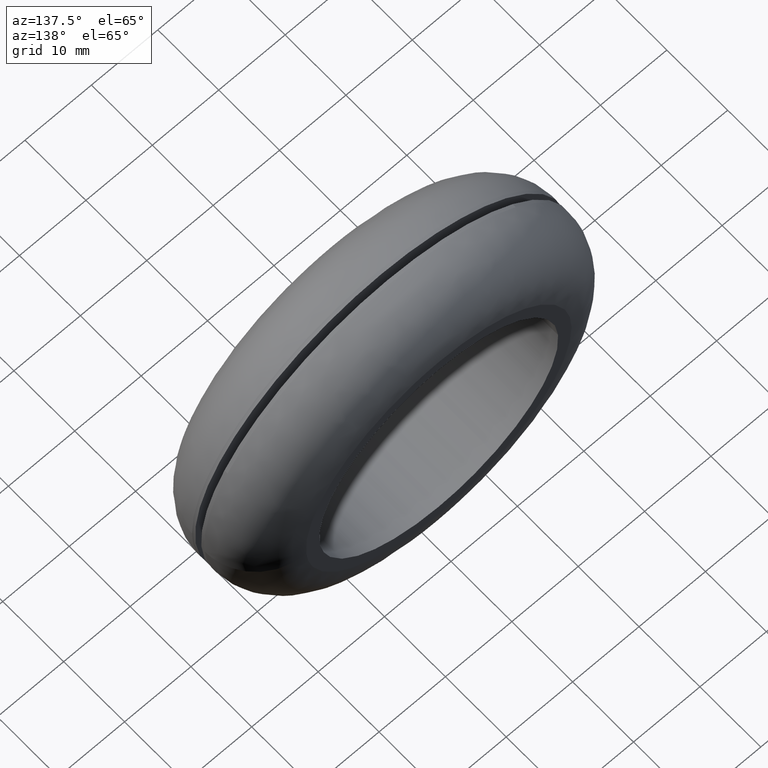
[diagram: clean part render]
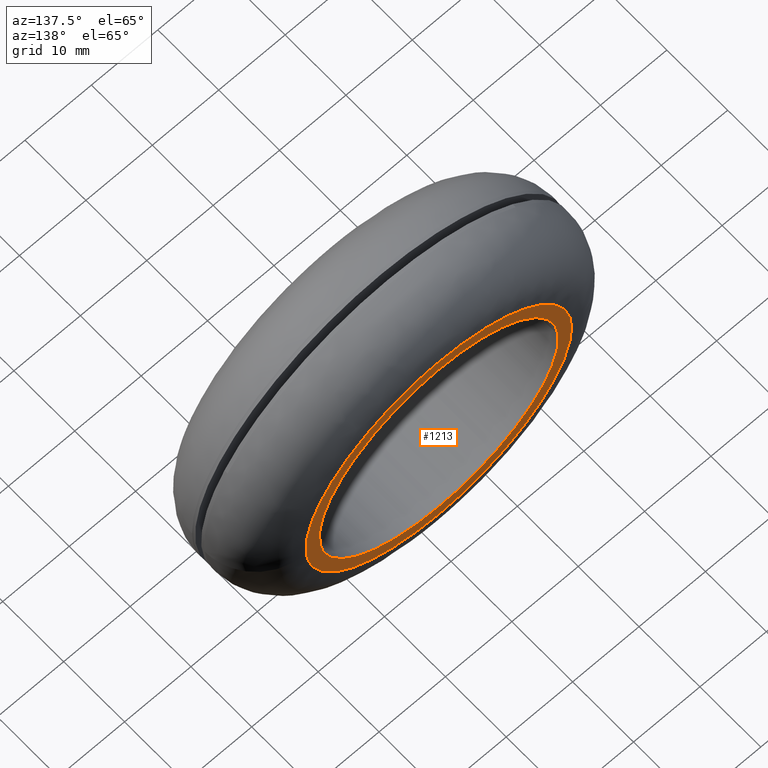
[diagram: same view with one face highlighted and labeled with its STEP entity id]
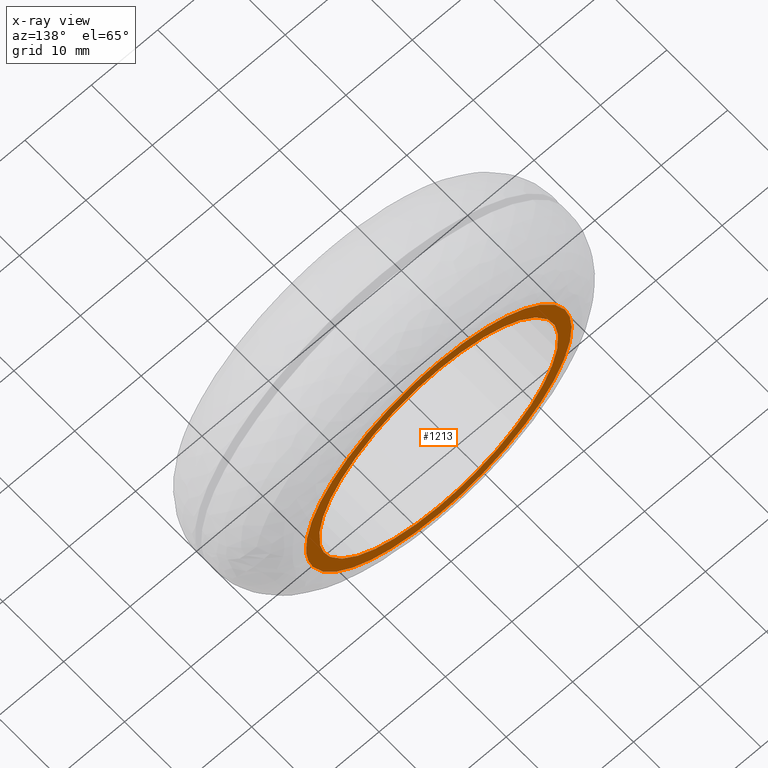
[diagram: x-ray of the same camera — body ghosted, the highlighted face saturated]
A machine part, auxiliary view. The second image highlights one B-rep face of the part: STEP entity #1213.
The next image is the same camera in x-ray: the body ghosted, the highlighted face saturated — about 0% of this face is hidden behind the body in this view.
In plain terms, the highlighted face is a freeform B-spline surface patch.
Its self-contained STEP definition (entity closure, byte-faithful):
#684=CARTESIAN_POINT('',(17.874173591016429,18.000000000000089,-2.124598418028458));
#685=VERTEX_POINT('',#684);
#686=CARTESIAN_POINT('',(0.0,18.0,18.0));
#687=VERTEX_POINT('',#686);
#688=CARTESIAN_POINT('',(17.874173591016433,18.000000000000089,-2.124598418028459));
#689=CARTESIAN_POINT('',(18.0,18.0,-1.066025156718830));
#690=CARTESIAN_POINT('',(18.0,18.0,-4.286122E-016));
#691=CARTESIAN_POINT('',(18.000000000000007,18.000000000000007,18.000000000000007));
#692=CARTESIAN_POINT('',(0.0,18.0,18.0));
#700=(BOUNDED_CURVE()B_SPLINE_CURVE(2,(#688,#689,#690,#691,#692),.UNSPECIFIED.,.F.,.U.)B_SPLINE_CURVE_WITH_KNOTS((3,2,3),(0.229562641872376,0.250000000000000,0.500000000000000),.UNSPECIFIED.)CURVE()GEOMETRIC_REPRESENTATION_ITEM()RATIONAL_B_SPLINE_CURVE((0.956027084174235,0.976056145575827,1.0,0.707106781186547,1.0))REPRESENTATION_ITEM(''));
#701=EDGE_CURVE('',#685,#687,#700,.T.);
#742=CARTESIAN_POINT('',(-17.966427379012210,17.999999999999918,1.098857240230970));
#743=VERTEX_POINT('',#742);
#749=CARTESIAN_POINT('',(0.0,18.0,18.0));
#750=CARTESIAN_POINT('',(-16.932724757014672,18.0,18.0));
#751=CARTESIAN_POINT('',(-17.966427379012213,17.999999999999918,1.098857240230970));
#759=(BOUNDED_CURVE()B_SPLINE_CURVE(2,(#749,#750,#751),.UNSPECIFIED.,.F.,.U.)B_SPLINE_CURVE_WITH_KNOTS((3,3),(0.500000000000000,0.739333120430740),.UNSPECIFIED.)CURVE()GEOMETRIC_REPRESENTATION_ITEM()RATIONAL_B_SPLINE_CURVE((1.0,0.719603807953492,0.976072380702086))REPRESENTATION_ITEM(''));
#760=EDGE_CURVE('',#687,#743,#759,.T.);
#783=CARTESIAN_POINT('',(0.0,18.0,-18.0));
#784=VERTEX_POINT('',#783);
#785=CARTESIAN_POINT('',(0.0,18.0,-18.0));
#786=CARTESIAN_POINT('',(15.987157505225790,18.000000000000007,-18.000000000000007));
#787=CARTESIAN_POINT('',(17.874173591016433,18.000000000000089,-2.124598418028459));
#795=(BOUNDED_CURVE()B_SPLINE_CURVE(2,(#785,#786,#787),.UNSPECIFIED.,.F.,.U.)B_SPLINE_CURVE_WITH_KNOTS((3,3),(0.0,0.229562641872376),.UNSPECIFIED.)CURVE()GEOMETRIC_REPRESENTATION_ITEM()RATIONAL_B_SPLINE_CURVE((1.0,0.731050635610720,0.956027084174235))REPRESENTATION_ITEM(''));
#796=EDGE_CURVE('',#784,#685,#795,.T.);
#798=CARTESIAN_POINT('',(-17.966427379012213,17.999999999999918,1.098857240230970));
#799=CARTESIAN_POINT('',(-18.000000000000004,18.000000000000004,0.549941480584856));
#800=CARTESIAN_POINT('',(-18.0,18.0,-4.286122E-016));
#801=CARTESIAN_POINT('',(-18.000000000000007,18.000000000000007,-18.000000000000007));
#802=CARTESIAN_POINT('',(0.0,18.0,-18.0));
#810=(BOUNDED_CURVE()B_SPLINE_CURVE(2,(#798,#799,#800,#801,#802),.UNSPECIFIED.,.F.,.U.)B_SPLINE_CURVE_WITH_KNOTS((3,2,3),(0.739333120430740,0.750000000000000,1.0),.UNSPECIFIED.)CURVE()GEOMETRIC_REPRESENTATION_ITEM()RATIONAL_B_SPLINE_CURVE((0.976072380702086,0.987502973233056,1.0,0.707106781186547,1.0))REPRESENTATION_ITEM(''));
#811=EDGE_CURVE('',#743,#784,#810,.T.);
#1035=CARTESIAN_POINT('',(19.951313477026670,18.0,-1.394665031562556));
#1036=VERTEX_POINT('',#1035);
#1050=CARTESIAN_POINT('',(0.0,18.0,20.0));
#1051=VERTEX_POINT('',#1050);
#1052=CARTESIAN_POINT('',(19.951313477026673,18.000000000000004,-1.394665031562555));
#1053=CARTESIAN_POINT('',(20.0,18.0,-0.698182317532665));
#1054=CARTESIAN_POINT('',(20.0,18.0,-4.286122E-016));
#1055=CARTESIAN_POINT('',(19.999999999999996,18.000000000000007,19.999999999999996));
#1056=CARTESIAN_POINT('',(0.0,18.0,20.0));
#1064=(BOUNDED_CURVE()B_SPLINE_CURVE(2,(#1052,#1053,#1054,#1055,#1056),.UNSPECIFIED.,.F.,.U.)B_SPLINE_CURVE_WITH_KNOTS((3,2,3),(0.237833686534474,0.250000000000000,0.500000000000000),.UNSPECIFIED.)CURVE()GEOMETRIC_REPRESENTATION_ITEM()RATIONAL_B_SPLINE_CURVE((0.972879876385670,0.985746277151955,1.0,0.707106781186548,1.0))REPRESENTATION_ITEM(''));
#1065=EDGE_CURVE('',#1036,#1051,#1064,.T.);
#1067=CARTESIAN_POINT('',(-19.998420884129541,18.0,0.251320797672036));
#1068=VERTEX_POINT('',#1067);
#1069=CARTESIAN_POINT('',(0.0,18.0,20.0));
#1070=CARTESIAN_POINT('',(-19.750238598137660,18.0,20.0));
#1071=CARTESIAN_POINT('',(-19.998420884129533,18.0,0.251320797672036));
#1079=(BOUNDED_CURVE()B_SPLINE_CURVE(2,(#1069,#1070,#1071),.UNSPECIFIED.,.F.,.U.)B_SPLINE_CURVE_WITH_KNOTS((3,3),(0.500000000000000,0.747784295921651),.UNSPECIFIED.)CURVE()GEOMETRIC_REPRESENTATION_ITEM()RATIONAL_B_SPLINE_CURVE((1.0,0.709702639984330,0.994854295643836))REPRESENTATION_ITEM(''));
#1080=EDGE_CURVE('',#1051,#1068,#1079,.T.);
#1126=CARTESIAN_POINT('',(0.0,18.0,-20.0));
#1127=VERTEX_POINT('',#1126);
#1128=CARTESIAN_POINT('',(-19.998420884129541,18.0,0.251320797672036));
#1129=CARTESIAN_POINT('',(-20.0,18.0,0.125665359842116));
#1130=CARTESIAN_POINT('',(-20.0,18.0,-4.286122E-016));
#1131=CARTESIAN_POINT('',(-19.999999999999996,18.000000000000007,-19.999999999999996));
#1132=CARTESIAN_POINT('',(0.0,18.0,-20.0));
#1140=(BOUNDED_CURVE()B_SPLINE_CURVE(2,(#1128,#1129,#1130,#1131,#1132),.UNSPECIFIED.,.F.,.U.)B_SPLINE_CURVE_WITH_KNOTS((3,2,3),(0.747784295921652,0.750000000000000,1.0),.UNSPECIFIED.)CURVE()GEOMETRIC_REPRESENTATION_ITEM()RATIONAL_B_SPLINE_CURVE((0.994854295643837,0.997404141202218,1.0,0.707106781186548,1.0))REPRESENTATION_ITEM(''));
#1141=EDGE_CURVE('',#1068,#1127,#1140,.T.);
#1143=CARTESIAN_POINT('',(0.0,18.0,-20.0));
#1144=CARTESIAN_POINT('',(18.650736945260622,18.000000000000004,-19.999999999999996));
#1145=CARTESIAN_POINT('',(19.951313477026673,18.000000000000004,-1.394665031562556));
#1153=(BOUNDED_CURVE()B_SPLINE_CURVE(2,(#1143,#1144,#1145),.UNSPECIFIED.,.F.,.U.)B_SPLINE_CURVE_WITH_KNOTS((3,3),(0.0,0.237833686534474),.UNSPECIFIED.)CURVE()GEOMETRIC_REPRESENTATION_ITEM()RATIONAL_B_SPLINE_CURVE((1.0,0.721360504034593,0.972879876385670))REPRESENTATION_ITEM(''));
#1154=EDGE_CURVE('',#1127,#1036,#1153,.T.);
#1196=CARTESIAN_POINT('',(-21.996227966434290,18.0,21.997999922472239));
#1197=CARTESIAN_POINT('',(-21.996227966434290,18.0,-21.998000995355849));
#1198=CARTESIAN_POINT('',(21.995526606843189,18.0,21.997999922472239));
#1199=CARTESIAN_POINT('',(21.995526606843189,18.0,-21.998000995355849));
#1200=B_SPLINE_SURFACE_WITH_KNOTS('',1,1,((#1196,#1198),(#1197,#1199)),.UNSPECIFIED.,.F.,.F.,.U.,(2,2),(2,2),(0.0,43.996000917828077),(0.0,43.991754573277483),.UNSPECIFIED.);
#1201=ORIENTED_EDGE('',*,*,#1080,.F.);
#1202=ORIENTED_EDGE('',*,*,#1065,.F.);
#1203=ORIENTED_EDGE('',*,*,#1154,.F.);
#1204=ORIENTED_EDGE('',*,*,#1141,.F.);
#1205=EDGE_LOOP('',(#1201,#1202,#1203,#1204));
#1206=FACE_OUTER_BOUND('',#1205,.T.);
#1207=ORIENTED_EDGE('',*,*,#760,.T.);
#1208=ORIENTED_EDGE('',*,*,#811,.T.);
#1209=ORIENTED_EDGE('',*,*,#796,.T.);
#1210=ORIENTED_EDGE('',*,*,#701,.T.);
#1211=EDGE_LOOP('',(#1207,#1208,#1209,#1210));
#1212=FACE_BOUND('',#1211,.T.);
#1213=ADVANCED_FACE('',(#1206,#1212),#1200,.F.);